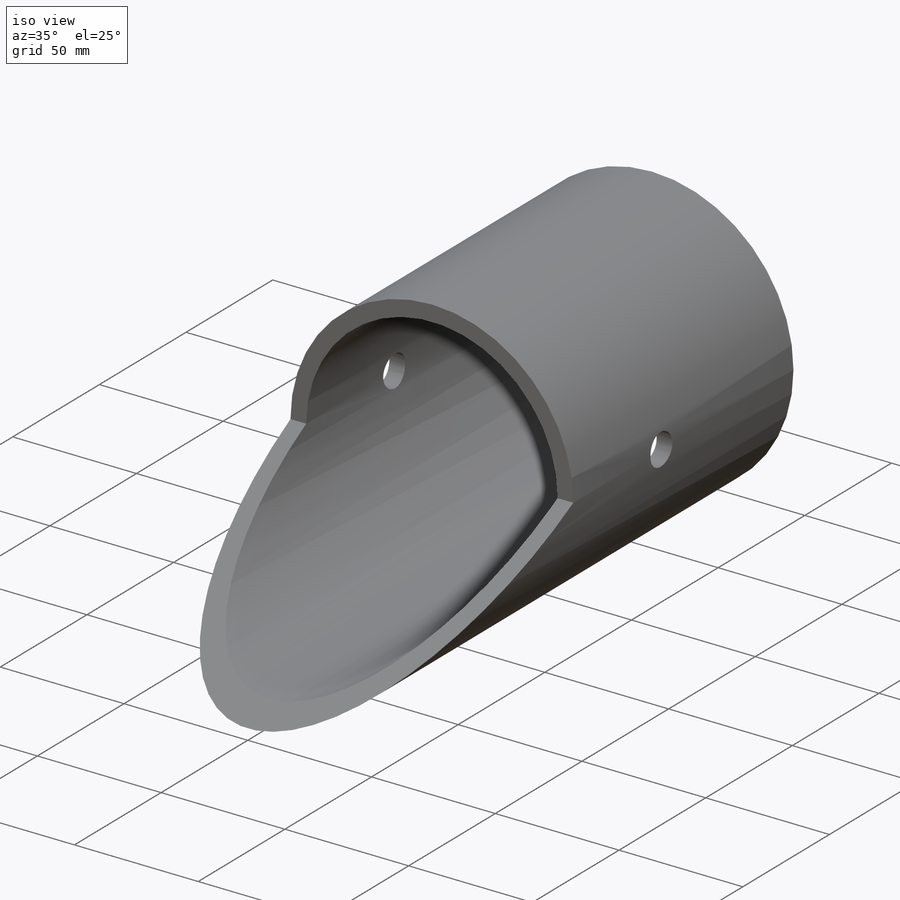
[diagram: iso view]
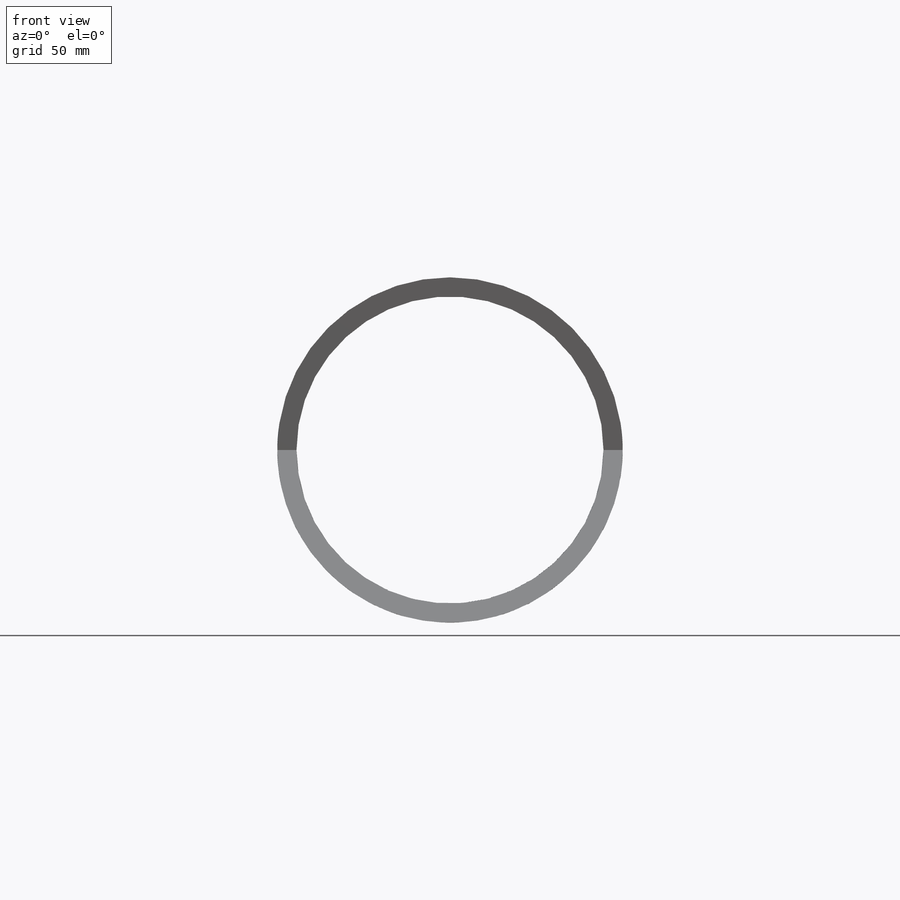
[diagram: front view]
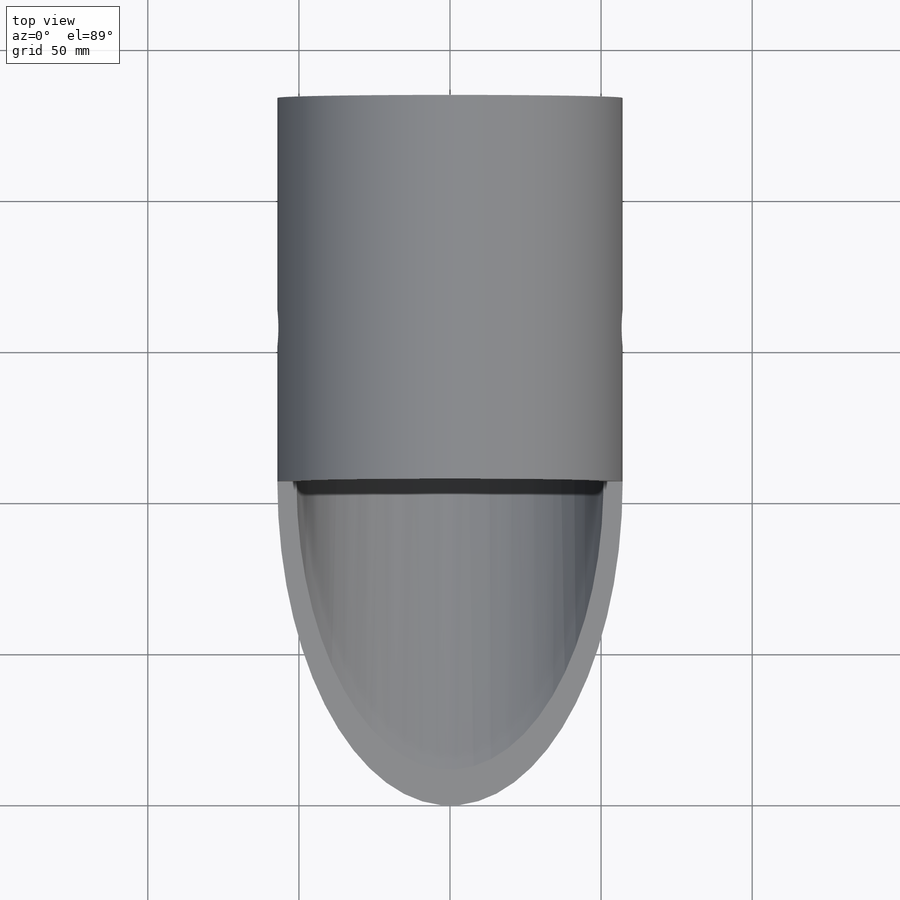
[diagram: top view]
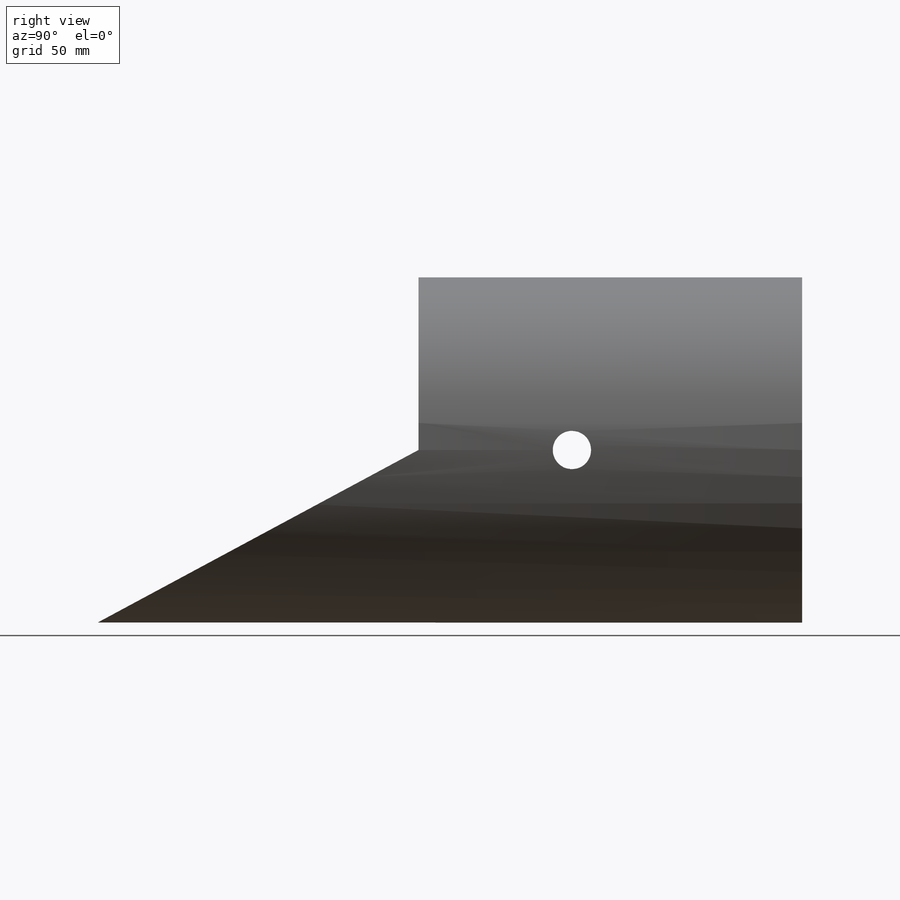
[diagram: right view]
SOLIDWORKS PART (.sldprt)
format: sldprt  version: not decoded by parser v0  size: 222,208 bytes
history: native  units: mm
features: sketch x5, cut_extrude x3, extrude x2, material x1 (+12 scaffold rows collapsed)
feature tree (23):
  scaffold x12  (default folders/planes/origin — collapsed)
  material  "Material <not specified>"
  sketch  "Sketch1"  dims[D1=101.6mm D2=114.3mm]
  extrude  "Boss-Extrude1"  Depth=127mm
  sketch  "Sketch2"  dims[D1=120.65mm D2=120.65mm]
  cut_extrude  "Cut-Extrude1"  [1 undecoded]
  sketch  "Sketch3"  dims[c1.D1=57.15mm c1.D2=~20.744177mm c2.D1=57.15mm c2.D2=~20.744177mm]
  cut_extrude  "Cut-Extrude2"  [1 undecoded]
  sketch  "Sketch4"  dims[D1=101.6mm]
  extrude  "Boss-Extrude2"  Depth=127mm
  sketch  "Sketch5"  dims[D1=12.7mm D2=50.8mm]
  cut_extrude  "Cut-Extrude3"  [1 undecoded]
decode coverage: 7 of 10 modeling features carry decoded parameters
note: ~ marks probable driven/reference dimensions
note: 3 parameter values undecoded
summary: no parameter record found for 3 features
note: suppression state not decoded; provenance and decode notes live in map.json
